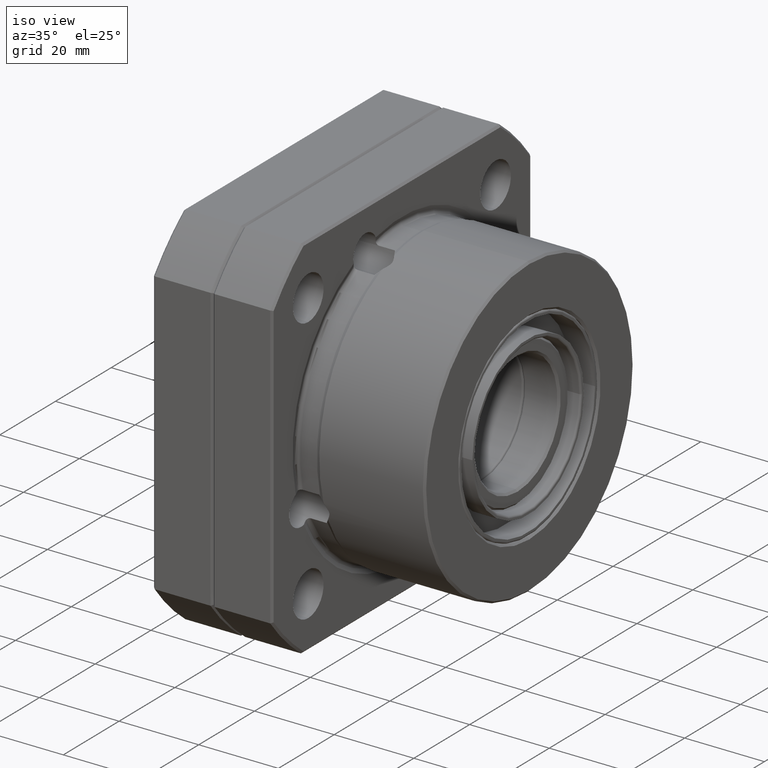
[diagram: clean part render]
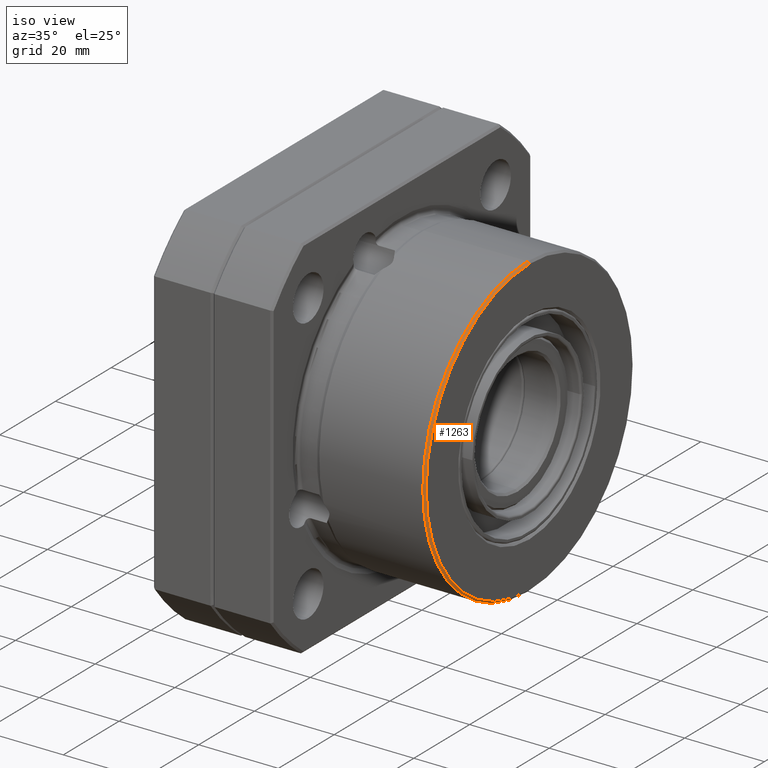
[diagram: same view with one face highlighted and labeled with its STEP entity id]
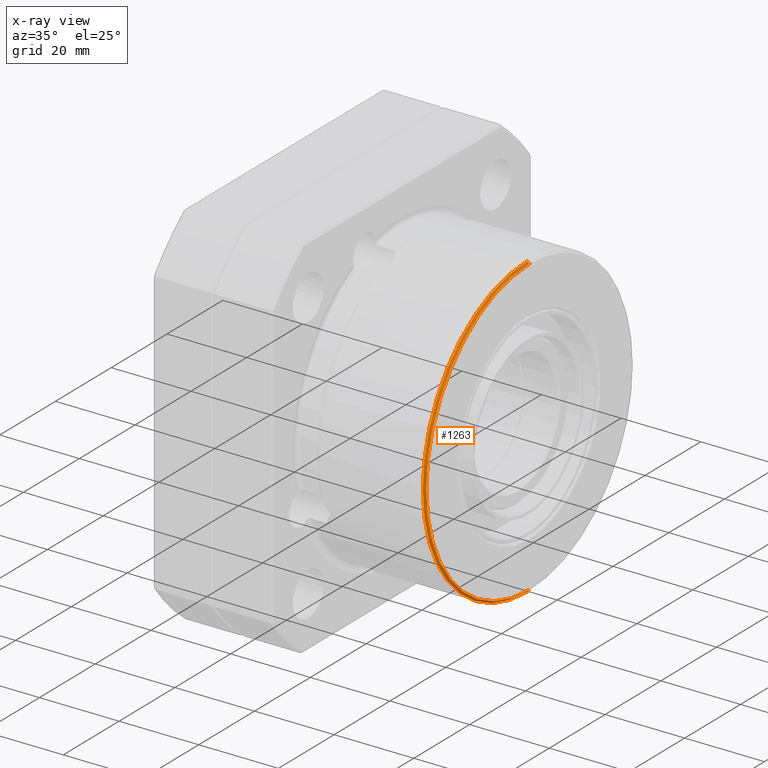
[diagram: x-ray of the same camera — body ghosted, the highlighted face saturated]
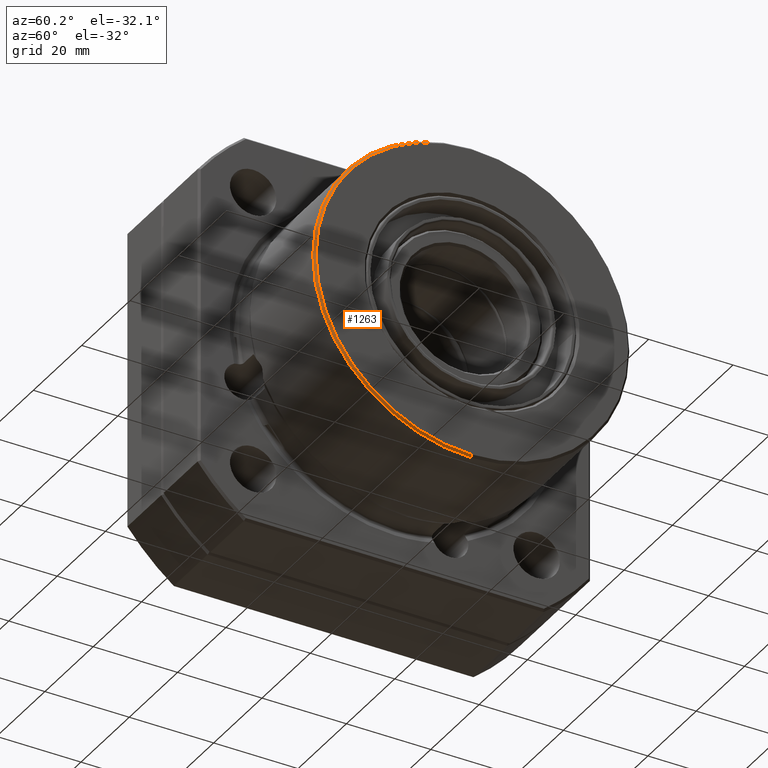
[diagram: same view with one face highlighted and labeled with its STEP entity id]
A machine part, iso view. The second image highlights one B-rep face of the part: STEP entity #1263.
The next image is the same camera in x-ray: the body ghosted, the highlighted face saturated — about 0% of this face is hidden behind the body in this view.
A second angle (auxiliary view) of the same face is appended — the face is thin or edge-on in the first view.
In plain terms, the highlighted conical surface has half-angle 45 deg.
Its self-contained STEP definition (entity closure, byte-faithful):
#171 = VERTEX_POINT ( 'NONE', #4512 ) ;
#181 = VERTEX_POINT ( 'NONE', #4542 ) ;
#224 = EDGE_CURVE ( 'NONE', #240, #171, #4640, .T. ) ;
#240 = VERTEX_POINT ( 'NONE', #4677 ) ;
#605 = EDGE_CURVE ( 'NONE', #181, #616, #6595, .T. ) ;
#616 = VERTEX_POINT ( 'NONE', #6627 ) ;
#880 = EDGE_CURVE ( 'NONE', #181, #240, #7039, .T. ) ;
#908 = EDGE_CURVE ( 'NONE', #171, #616, #7563, .T. ) ;
#1242 = ORIENTED_EDGE ( 'NONE', *, *, #605, .T. ) ;
#1243 = ORIENTED_EDGE ( 'NONE', *, *, #908, .F. ) ;
#1263 = ADVANCED_FACE ( 'NONE', ( #8333 ), #8328, .T. ) ;
#1264 = EDGE_LOOP ( 'NONE', ( #1265, #1266, #1242, #1243 ) ) ;
#1265 = ORIENTED_EDGE ( 'NONE', *, *, #224, .F. ) ;
#1266 = ORIENTED_EDGE ( 'NONE', *, *, #880, .F. ) ;
#4512 = CARTESIAN_POINT ( 'NONE',  ( 46.50000000000000000, 4.592273826833913900E-015, -37.50000000000000000 ) ) ;
#4542 = CARTESIAN_POINT ( 'NONE',  ( 47.00000000000000000, 0.0000000000000000000, 37.00000000000000700 ) ) ;
#4637 = DIRECTION ( 'NONE',  ( -0.7071067811865524600, 8.659274570719297500E-017, -0.7071067811865426900 ) ) ;
#4638 = VECTOR ( 'NONE', #4637, 1000.000000000000000 ) ;
#4639 = CARTESIAN_POINT ( 'NONE',  ( 46.50000000000000000, 4.592273826833913900E-015, -37.50000000000000000 ) ) ;
#4640 = LINE ( 'NONE', #4639, #4638 ) ;
#4677 = CARTESIAN_POINT ( 'NONE',  ( 47.00000000000000000, 4.561658667988355300E-015, -37.00000000000000700 ) ) ;
#6592 = DIRECTION ( 'NONE',  ( -0.7071067811865524600, 0.0000000000000000000, 0.7071067811865426900 ) ) ;
#6593 = VECTOR ( 'NONE', #6592, 1000.000000000000000 ) ;
#6594 = CARTESIAN_POINT ( 'NONE',  ( 46.50000000000000000, 0.0000000000000000000, 37.50000000000000000 ) ) ;
#6595 = LINE ( 'NONE', #6594, #6593 ) ;
#6627 = CARTESIAN_POINT ( 'NONE',  ( 46.50000000000000000, 0.0000000000000000000, 37.50000000000000000 ) ) ;
#7031 = DIRECTION ( 'NONE',  ( 0.0000000000000000000, 0.0000000000000000000, 1.000000000000000000 ) ) ;
#7032 = DIRECTION ( 'NONE',  ( 1.000000000000000000, 0.0000000000000000000, 0.0000000000000000000 ) ) ;
#7033 = CARTESIAN_POINT ( 'NONE',  ( 47.00000000000000000, 0.0000000000000000000, 0.0000000000000000000 ) ) ;
#7034 = AXIS2_PLACEMENT_3D ( 'NONE', #7033, #7032, #7031 ) ;
#7039 = CIRCLE ( 'NONE', #7034, 37.00000000000000700 ) ;
#7563 = CIRCLE ( 'NONE', #7617, 37.50000000000000000 ) ;
#7614 = DIRECTION ( 'NONE',  ( 0.0000000000000000000, 0.0000000000000000000, 1.000000000000000000 ) ) ;
#7615 = DIRECTION ( 'NONE',  ( -1.000000000000000000, -0.0000000000000000000, -0.0000000000000000000 ) ) ;
#7616 = CARTESIAN_POINT ( 'NONE',  ( 46.50000000000000000, 0.0000000000000000000, 0.0000000000000000000 ) ) ;
#7617 = AXIS2_PLACEMENT_3D ( 'NONE', #7616, #7615, #7614 ) ;
#8328 = CONICAL_SURFACE ( 'NONE', #8378, 37.50000000000000000, 0.7853981633974414000 ) ;
#8333 = FACE_OUTER_BOUND ( 'NONE', #1264, .T. ) ;
#8375 = DIRECTION ( 'NONE',  ( 0.0000000000000000000, 0.0000000000000000000, 1.000000000000000000 ) ) ;
#8376 = DIRECTION ( 'NONE',  ( -1.000000000000000000, -0.0000000000000000000, -0.0000000000000000000 ) ) ;
#8377 = CARTESIAN_POINT ( 'NONE',  ( 46.50000000000000000, 0.0000000000000000000, 0.0000000000000000000 ) ) ;
#8378 = AXIS2_PLACEMENT_3D ( 'NONE', #8377, #8376, #8375 ) ;